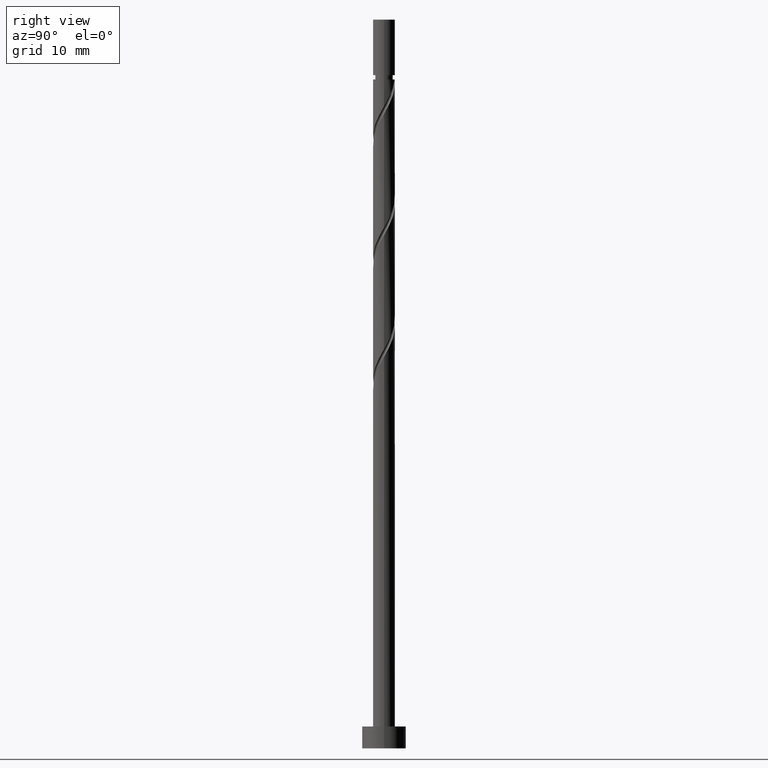
[diagram: clean part render]
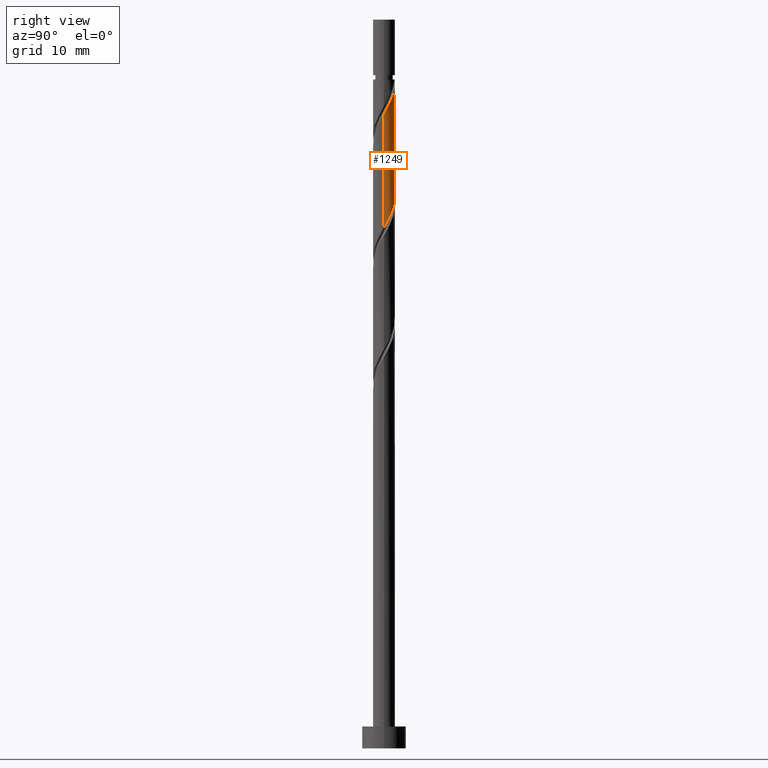
[diagram: same view with one face highlighted and labeled with its STEP entity id]
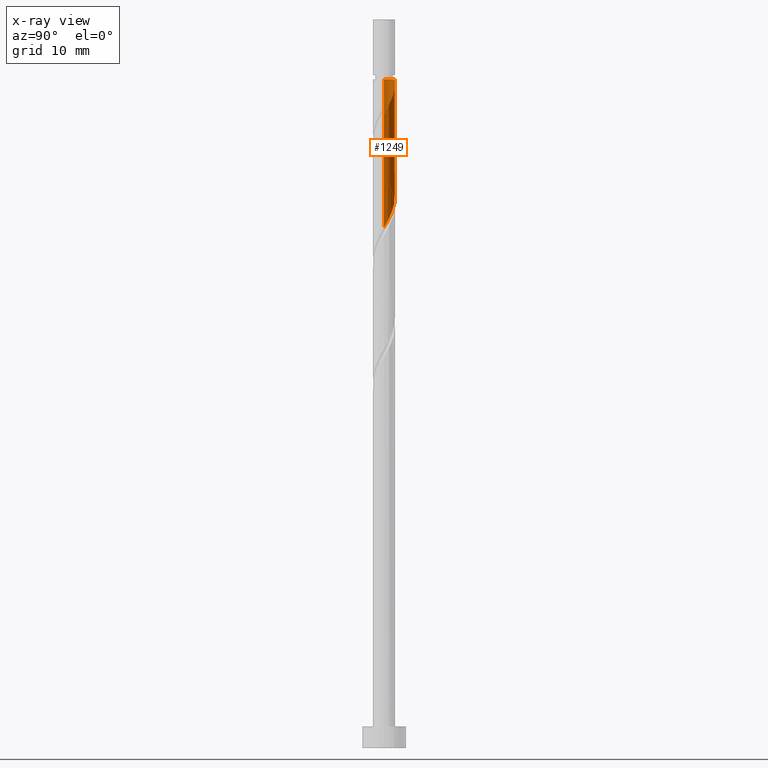
[diagram: x-ray of the same camera — body ghosted, the highlighted face saturated]
A machine part, right view. The second image highlights one B-rep face of the part: STEP entity #1249.
The next image is the same camera in x-ray: the body ghosted, the highlighted face saturated — about 0% of this face is hidden behind the body in this view.
In plain terms, the highlighted cylindrical surface (edge-blend (fillet) strip) has radius 1.5 mm, axis along (-0, -0, -1).
Its self-contained STEP definition (entity closure, byte-faithful):
#14 = LINE ( 'NONE', #935, #1008 ) ;
#15 = EDGE_CURVE ( 'NONE', #134, #1109, #1340, .T. ) ;
#56 = CARTESIAN_POINT ( 'NONE',  ( 0.2984962311319862560, 1.470000000000000417, 75.10768648993276031 ) ) ;
#122 = DIRECTION ( 'NONE',  ( -1.000000000000000000, 0.000000000000000000, 0.000000000000000000 ) ) ;
#134 = VERTEX_POINT ( 'NONE', #242 ) ;
#153 = CARTESIAN_POINT ( 'NONE',  ( -0.03929556949053986115, 1.522632939188361512, 91.31139019363644138 ) ) ;
#154 = CARTESIAN_POINT ( 'NONE',  ( 1.500000000000000222, 1.836970198721029934E-16, 100.0000000000000000 ) ) ;
#160 = CARTESIAN_POINT ( 'NONE',  ( 0.4838453794137463904, 1.444246813430080989, 90.38546426771053177 ) ) ;
#170 = EDGE_CURVE ( 'NONE', #1465, #252, #867, .T. ) ;
#173 = AXIS2_PLACEMENT_3D ( 'NONE', #234, #331, #782 ) ;
#175 = AXIS2_PLACEMENT_3D ( 'NONE', #1032, #703, #122 ) ;
#180 = CARTESIAN_POINT ( 'NONE',  ( -0.2984962311319856454, 1.470000000000002416, 91.77435315659938908 ) ) ;
#183 = CARTESIAN_POINT ( 'NONE',  ( 1.173559165389829184, 0.9342156524751276114, 73.25583463808088425 ) ) ;
#234 = CARTESIAN_POINT ( 'NONE',  ( 0.000000000000000000, 0.000000000000000000, 91.77435315659938908 ) ) ;
#242 = CARTESIAN_POINT ( 'NONE',  ( -1.500000000000000444, 1.765785845842849562E-14, 79.80520804492147136 ) ) ;
#246 = CYLINDRICAL_SURFACE ( 'NONE', #175, 1.500000000000000222 ) ;
#252 = VERTEX_POINT ( 'NONE', #623 ) ;
#297 = CARTESIAN_POINT ( 'NONE',  ( -0.7162364070885970380, 1.317955010294667995, 76.95953834178457953 ) ) ;
#331 = DIRECTION ( 'NONE',  ( -0.000000000000000000, -0.000000000000000000, -1.000000000000000000 ) ) ;
#332 = CARTESIAN_POINT ( 'NONE',  ( 1.500000000000002665, 0.01935251149802851012, 87.11084897554299289 ) ) ;
#391 = LINE ( 'NONE', #154, #1075 ) ;
#401 = CARTESIAN_POINT ( 'NONE',  ( -0.9486274347634497950, 1.191663207159256554, 77.42250130474754144 ) ) ;
#414 = CIRCLE ( 'NONE', #173, 1.500000000000001332 ) ;
#426 = CARTESIAN_POINT ( 'NONE',  ( -1.499999999999999778, 0.01935251149803724618, 79.77119067098911387 ) ) ;
#469 = CARTESIAN_POINT ( 'NONE',  ( 1.338286590721356584, 0.7272855081591933502, 72.79287167511792234 ) ) ;
#511 = CARTESIAN_POINT ( 'NONE',  ( 1.500000000000000222, 3.697394220356223103E-16, 71.47187471158817118 ) ) ;
#524 = CARTESIAN_POINT ( 'NONE',  ( 0.5576968927734292647, 1.417367060811640878, 74.64472352696974156 ) ) ;
#530 = DIRECTION ( 'NONE',  ( -0.000000000000000000, -0.000000000000000000, -1.000000000000000000 ) ) ;
#547 = CARTESIAN_POINT ( 'NONE',  ( -1.500000000000000666, 1.765785845842849562E-14, 79.80520804492147136 ) ) ;
#623 = CARTESIAN_POINT ( 'NONE',  ( -0.2984962311319856454, 1.470000000000002416, 91.77435315659940329 ) ) ;
#635 = CARTESIAN_POINT ( 'NONE',  ( -0.2222749049616010442, 1.483439876309219363, 76.03361241585865571 ) ) ;
#684 = EDGE_CURVE ( 'NONE', #1359, #252, #414, .T. ) ;
#703 = DIRECTION ( 'NONE',  ( -0.000000000000000000, -0.000000000000000000, -1.000000000000000000 ) ) ;
#713 = ORIENTED_EDGE ( 'NONE', *, *, #994, .F. ) ;
#722 = CARTESIAN_POINT ( 'NONE',  ( -1.500000000000001332, 0.000000000000000000, 91.77435315659938908 ) ) ;
#736 = DIRECTION ( 'NONE',  ( -0.000000000000000000, -0.000000000000000000, -1.000000000000000000 ) ) ;
#754 = CARTESIAN_POINT ( 'NONE',  ( 0.7832643164158661353, 1.279256428801351486, 74.18176056400679386 ) ) ;
#776 = CARTESIAN_POINT ( 'NONE',  ( -1.123809227997132343, 0.9935053190942115808, 77.88546426771047493 ) ) ;
#782 = DIRECTION ( 'NONE',  ( -1.000000000000000000, 0.000000000000000000, 0.000000000000000000 ) ) ;
#783 = CARTESIAN_POINT ( 'NONE',  ( 1.422305459129117988, 0.4764946809057892807, 72.32990871215496043 ) ) ;
#789 = CARTESIAN_POINT ( 'NONE',  ( 1.499500723504464617, 0.03869858149331581454, 87.14472352696976998 ) ) ;
#797 = CARTESIAN_POINT ( 'NONE',  ( 1.500000000000002442, 5.340680540514506463E-16, 87.07683160161063540 ) ) ;
#799 = ORIENTED_EDGE ( 'NONE', *, *, #170, .F. ) ;
#808 = FACE_OUTER_BOUND ( 'NONE', #1055, .T. ) ;
#811 = CARTESIAN_POINT ( 'NONE',  ( 1.500000000000000222, 0.2445815577306842958, 71.90179422395375752 ) ) ;
#855 = CARTESIAN_POINT ( 'NONE',  ( -0.4838453794137442809, 1.444246813430079213, 76.49657537882160341 ) ) ;
#867 =( BOUNDED_CURVE ( )  B_SPLINE_CURVE ( 2, ( #797, #332, #789, #1241, #1233, #964, #1175, #1065, #1319, #160, #1199, #153, #180 ),
 .UNSPECIFIED., .F., .T. ) 
 B_SPLINE_CURVE_WITH_KNOTS ( ( 3, 2, 2, 2, 2, 2, 3 ),
 ( 0.6795248053855289516, 0.6805555555555555802, 0.6944444444444444198, 0.7083333333333332593, 0.7222222222222220989, 0.7361111111111110494, 0.7499999999999998890 ),
 .UNSPECIFIED. ) 
 CURVE ( )  GEOMETRIC_REPRESENTATION_ITEM ( )  RATIONAL_B_SPLINE_CURVE ( ( 0.9071930855141244754, 0.9080659294509721979, 0.9090909090909123913, 0.8952797754656469653, 0.9090909090909123913, 0.8952797754656469653, 0.9090909090909123913, 0.8952797754656469653, 0.9090909090909123913, 0.8952797754656469653, 0.9090909090909123913, 0.8952797754656470763, 0.9090909090909122803 ) ) 
 REPRESENTATION_ITEM ( '' )  );
#879 = CARTESIAN_POINT ( 'NONE',  ( -1.395834070351429812, 0.5492242238340913074, 78.81139019363642717 ) ) ;
#902 = EDGE_CURVE ( 'NONE', #1465, #1109, #391, .T. ) ;
#935 = CARTESIAN_POINT ( 'NONE',  ( -1.500000000000000222, 0.000000000000000000, 100.0000000000000000 ) ) ;
#964 = CARTESIAN_POINT ( 'NONE',  ( 1.298991021230817333, 0.7953474310291662741, 88.53361241585868413 ) ) ;
#994 = EDGE_CURVE ( 'NONE', #1359, #134, #14, .T. ) ;
#1008 = VECTOR ( 'NONE', #530, 1000.000000000000000 ) ;
#1032 = CARTESIAN_POINT ( 'NONE',  ( 0.000000000000000000, 0.000000000000000000, 100.0000000000000000 ) ) ;
#1055 = EDGE_LOOP ( 'NONE', ( #799, #1093, #1353, #713, #1179 ) ) ;
#1065 = CARTESIAN_POINT ( 'NONE',  ( 0.9486274347634516824, 1.191663207159258553, 89.45953834178459374 ) ) ;
#1075 = VECTOR ( 'NONE', #736, 1000.000000000000000 ) ;
#1085 = CARTESIAN_POINT ( 'NONE',  ( 0.03929556949054225506, 1.522632939188358847, 75.57064945289569380 ) ) ;
#1093 = ORIENTED_EDGE ( 'NONE', *, *, #902, .T. ) ;
#1109 = VERTEX_POINT ( 'NONE', #511 ) ;
#1175 = CARTESIAN_POINT ( 'NONE',  ( 1.123809227997134119, 0.9935053190942128021, 88.99657537882161762 ) ) ;
#1179 = ORIENTED_EDGE ( 'NONE', *, *, #684, .T. ) ;
#1199 = CARTESIAN_POINT ( 'NONE',  ( 0.2222749049616028205, 1.483439876309221361, 90.84842723067346526 ) ) ;
#1202 = CARTESIAN_POINT ( 'NONE',  ( 1.008831740058301563, 1.141145796791061873, 73.71879760104383195 ) ) ;
#1233 = CARTESIAN_POINT ( 'NONE',  ( 1.395834070351432477, 0.5492242238340917515, 88.07064945289569380 ) ) ;
#1241 = CARTESIAN_POINT ( 'NONE',  ( 1.492677119472048064, 0.3031010166390166183, 87.60768648993273189 ) ) ;
#1249 = ADVANCED_FACE ( 'NONE', ( #808 ), #246, .T. ) ;
#1313 = CARTESIAN_POINT ( 'NONE',  ( -1.492677119472045399, 0.3031010166390167293, 79.27435315659937487 ) ) ;
#1319 = CARTESIAN_POINT ( 'NONE',  ( 0.7162364070885989253, 1.317955010294669327, 89.92250130474755565 ) ) ;
#1330 = CARTESIAN_POINT ( 'NONE',  ( -1.298991021230814669, 0.7953474310291660521, 78.34842723067346526 ) ) ;
#1340 =( BOUNDED_CURVE ( )  B_SPLINE_CURVE ( 2, ( #547, #426, #1420, #1313, #879, #1330, #776, #401, #297, #855, #635, #1085, #56, #524, #754, #1202, #183, #469, #783, #811, #1366 ),
 .UNSPECIFIED., .F., .T. ) 
 B_SPLINE_CURVE_WITH_KNOTS ( ( 3, 2, 2, 2, 2, 2, 2, 2, 2, 2, 3 ),
 ( 0.4295248053855293957, 0.4305555555555555802, 0.4444444444444444198, 0.4583333333333333148, 0.4722222222222222099, 0.4861111111111111049, 0.5000000000000000000, 0.5138888888888888395, 0.5277777777777777901, 0.5416666666666666297, 0.5545248053855290626 ),
 .UNSPECIFIED. ) 
 CURVE ( )  GEOMETRIC_REPRESENTATION_ITEM ( )  RATIONAL_B_SPLINE_CURVE ( ( 0.9071930855141185912, 0.9080659294509660917, 0.9090909090909058410, 0.8952797754656407481, 0.9090909090909058410, 0.8952797754656407481, 0.9090909090909058410, 0.8952797754656407481, 0.9090909090909058410, 0.8952797754656407481, 0.9090909090909058410, 0.8952797754656407481, 0.9090909090909058410, 0.8952797754656407481, 0.9090909090909058410, 0.8952797754656407481, 0.9090909090909058410, 0.8952797754656407481, 0.9090909090909058410, 0.8963047551055808304, 0.9071930855141181471 ) ) 
 REPRESENTATION_ITEM ( '' )  );
#1353 = ORIENTED_EDGE ( 'NONE', *, *, #15, .F. ) ;
#1359 = VERTEX_POINT ( 'NONE', #722 ) ;
#1366 = CARTESIAN_POINT ( 'NONE',  ( 1.500000000000000222, 3.697394220356223103E-16, 71.47187471158817118 ) ) ;
#1420 = CARTESIAN_POINT ( 'NONE',  ( -1.499500723504461952, 0.03869858149331604352, 79.73731611956236520 ) ) ;
#1422 = CARTESIAN_POINT ( 'NONE',  ( 1.500000000000002220, 5.340680540514506463E-16, 87.07683160161063540 ) ) ;
#1465 = VERTEX_POINT ( 'NONE', #1422 ) ;